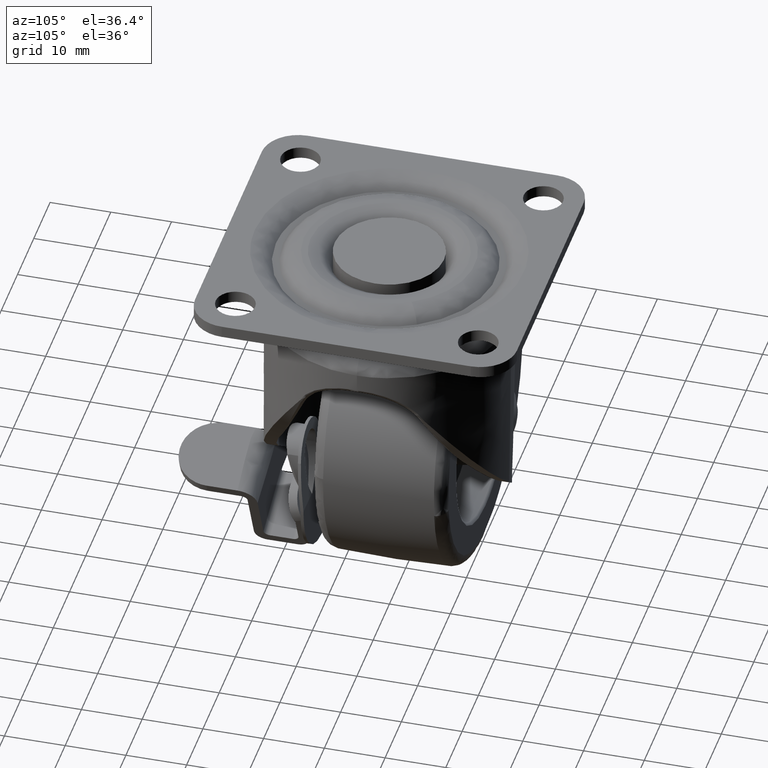
[diagram: clean part render]
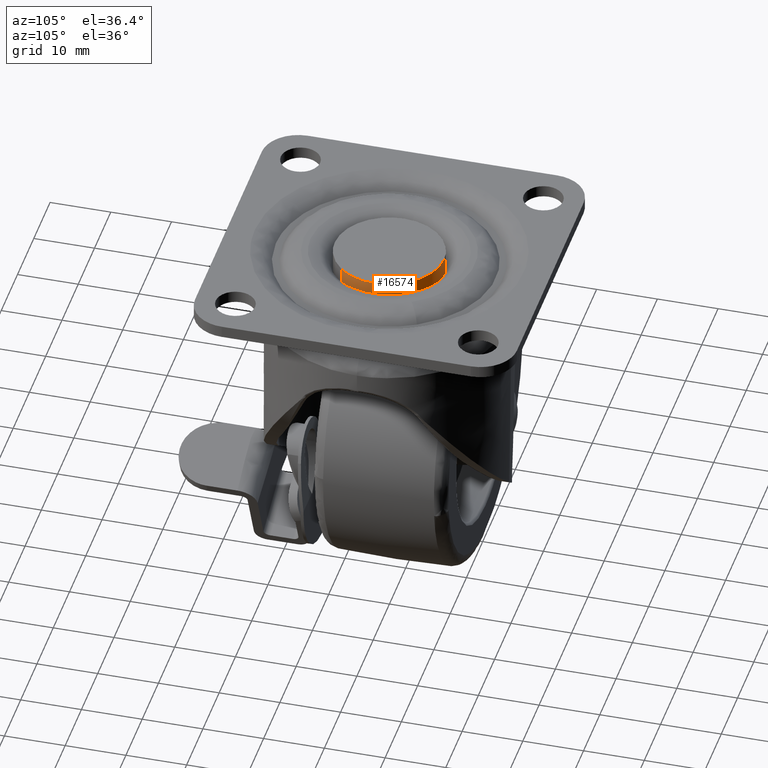
[diagram: same view with one face highlighted and labeled with its STEP entity id]
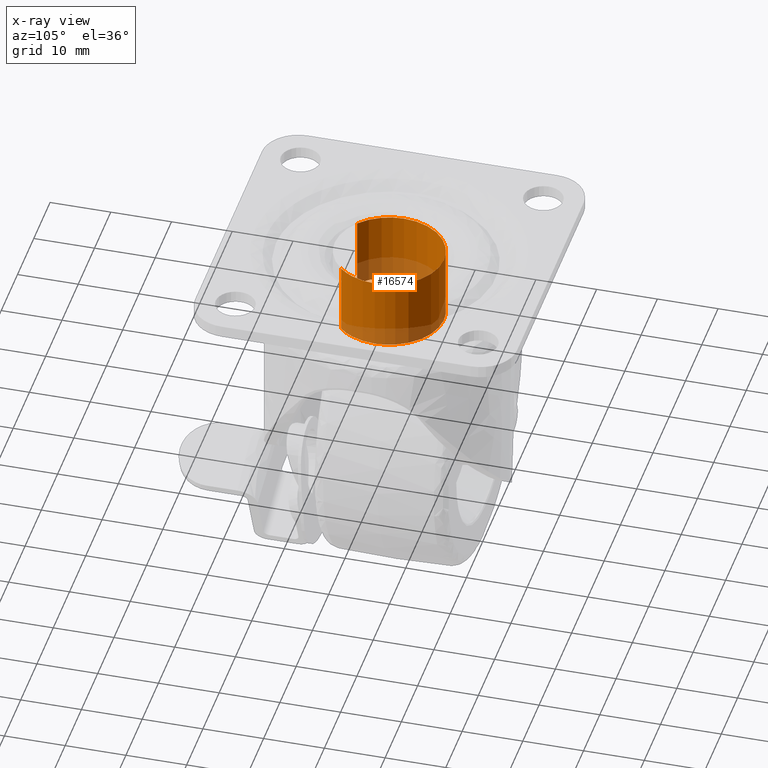
[diagram: x-ray of the same camera — body ghosted, the highlighted face saturated]
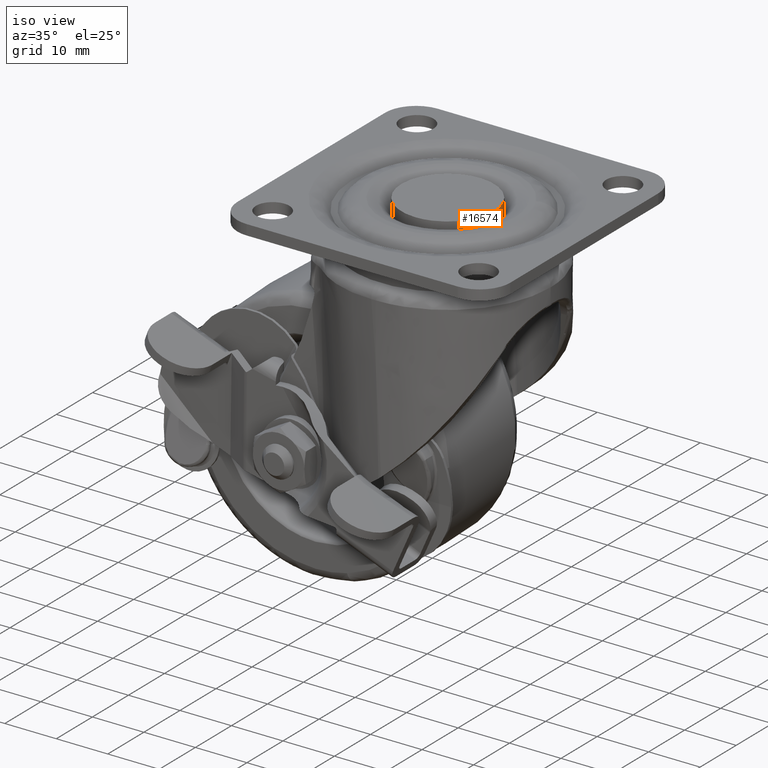
[diagram: same view with one face highlighted and labeled with its STEP entity id]
A machine part, auxiliary view. The second image highlights one B-rep face of the part: STEP entity #16574.
The next image is the same camera in x-ray: the body ghosted, the highlighted face saturated — about 25% of this face is hidden behind the body in this view.
A second angle (iso view) of the same face is appended — the face is thin or edge-on in the first view.
In plain terms, the highlighted face is a freeform B-spline surface patch.
Its self-contained STEP definition (entity closure, byte-faithful):
#16420=CARTESIAN_POINT('',(-5.811678345438228,-6.872000786464183,0.297496625000001));
#16421=CARTESIAN_POINT('',(-6.008352055535609,-6.705673049083633,0.297496625000001));
#16422=CARTESIAN_POINT('',(-6.195191181243784,-6.528369339110586,0.297496625000001));
#16423=CARTESIAN_POINT('',(-12.723560520354372,-0.333178157866802,0.297496625000001));
#16424=CARTESIAN_POINT('',(-6.528369339110586,6.195191181243784,0.297496625000001));
#16425=CARTESIAN_POINT('',(-0.333178157866802,12.723560520354372,0.297496625000001));
#16426=CARTESIAN_POINT('',(6.195191181243784,6.528369339110586,0.297496625000001));
#16427=CARTESIAN_POINT('',(12.723560520354372,0.333178157866802,0.297496625000001));
#16428=CARTESIAN_POINT('',(6.528369339110586,-6.195191181243784,0.297496625000001));
#16429=CARTESIAN_POINT('',(-5.811678345438228,-6.872000786464183,-12.204799040625025));
#16430=CARTESIAN_POINT('',(-6.008352055535609,-6.705673049083633,-12.204799040625021));
#16431=CARTESIAN_POINT('',(-6.195191181243784,-6.528369339110586,-12.204799040625019));
#16432=CARTESIAN_POINT('',(-12.723560520354372,-0.333178157866802,-12.204799040625021));
#16433=CARTESIAN_POINT('',(-6.528369339110586,6.195191181243784,-12.204799040625019));
#16434=CARTESIAN_POINT('',(-0.333178157866802,12.723560520354372,-12.204799040625021));
#16435=CARTESIAN_POINT('',(6.195191181243784,6.528369339110586,-12.204799040625019));
#16436=CARTESIAN_POINT('',(12.723560520354372,0.333178157866802,-12.204799040625021));
#16437=CARTESIAN_POINT('',(6.528369339110586,-6.195191181243784,-12.204799040625019));
#16445=(BOUNDED_SURFACE()B_SPLINE_SURFACE(2,1,((#16420,#16429),(#16421,#16430),(#16422,#16431),(#16423,#16432),(#16424,#16433),(#16425,#16434),(#16426,#16435),(#16427,#16436),(#16428,#16437)),.UNSPECIFIED.,.F.,.F.,.U.)B_SPLINE_SURFACE_WITH_KNOTS((3,2,2,2,3),(2,2),(0.0,0.596467529817257,15.508155775248680,30.419844020680092,45.331532266111502),(0.0,12.502295665625031),.UNSPECIFIED.)GEOMETRIC_REPRESENTATION_ITEM()RATIONAL_B_SPLINE_SURFACE(((0.977505800795127,0.977505800795127),(0.988284271247462,0.988284271247462),(1.0,1.0),(0.707106781186548,0.707106781186548),(1.0,1.0),(0.707106781186548,0.707106781186548),(1.0,1.0),(0.707106781186548,0.707106781186548),(1.0,1.0)))REPRESENTATION_ITEM('')SURFACE());
#16446=CARTESIAN_POINT('',(-5.811678486570379,-6.872001116954404,-11.899865000002620));
#16447=VERTEX_POINT('',#16446);
#16448=CARTESIAN_POINT('',(-9.0,0.0,-11.899865000000020));
#16449=VERTEX_POINT('',#16448);
#16450=CARTESIAN_POINT('',(-5.811678486570379,-6.872001116954404,-11.899865000002620));
#16451=CARTESIAN_POINT('',(-6.247069804922973,-6.503882552466793,-11.899865000002499));
#16452=CARTESIAN_POINT('',(-7.018888042895362,-5.713740328352339,-11.899865000002160));
#16453=CARTESIAN_POINT('',(-7.906705587162823,-4.389310077951777,-11.899865000001720));
#16454=CARTESIAN_POINT('',(-8.557692687394930,-2.934772598688211,-11.899865000001080));
#16455=CARTESIAN_POINT('',(-8.923881612996048,-1.466110313424584,-11.899865000000631));
#16456=CARTESIAN_POINT('',(-9.000014354109085,-0.447970466527409,-11.899865000000160));
#16457=CARTESIAN_POINT('',(-9.0,0.0,-11.899865000000020));
#16458=B_SPLINE_CURVE_WITH_KNOTS('',3,(#16450,#16451,#16452,#16453,#16454,#16455,#16456,#16457),.UNSPECIFIED.,.F.,.U.,(4,1,1,1,1,4),(0.000000035396710,1.710463458967251,3.298772666171680,4.764865570750185,6.475345099769010,7.819274894724820),.UNSPECIFIED.);
#16459=EDGE_CURVE('',#16447,#16449,#16458,.T.);
#16460=ORIENTED_EDGE('',*,*,#16459,.F.);
#16461=CARTESIAN_POINT('',(-5.811678487576729,-6.872001116103331,-2.839428E-016));
#16462=VERTEX_POINT('',#16461);
#16463=CARTESIAN_POINT('',(-5.811678487576729,-6.872001116103331,-2.839428E-016));
#16464=CARTESIAN_POINT('',(-5.811678486570379,-6.872001116954404,-11.899865000002620));
#16465=QUASI_UNIFORM_CURVE('',1,(#16463,#16464),.UNSPECIFIED.,.F.,.U.);
#16466=EDGE_CURVE('',#16462,#16447,#16465,.T.);
#16467=ORIENTED_EDGE('',*,*,#16466,.F.);
#16468=CARTESIAN_POINT('',(-9.0,0.0,0.0));
#16469=VERTEX_POINT('',#16468);
#16470=CARTESIAN_POINT('',(-5.811678487576729,-6.872001116103331,-2.839428E-016));
#16471=CARTESIAN_POINT('',(-6.309295077022649,-6.451316655763561,-2.665606E-016));
#16472=CARTESIAN_POINT('',(-7.184227326029249,-5.530868186337985,-2.285288E-016));
#16473=CARTESIAN_POINT('',(-8.104014890124521,-4.030030174358677,-1.665160E-016));
#16474=CARTESIAN_POINT('',(-8.806879228236774,-2.198962705697201,-9.085849E-017));
#16475=CARTESIAN_POINT('',(-9.000374695630573,-0.855282018685009,-3.533922E-017));
#16476=CARTESIAN_POINT('',(-9.0,0.0,0.0));
#16477=B_SPLINE_CURVE_WITH_KNOTS('',3,(#16470,#16471,#16472,#16473,#16474,#16475,#16476),.UNSPECIFIED.,.F.,.U.,(4,1,1,1,4),(0.000000035396177,1.954818951832569,3.787476283195245,5.253567264208143,7.819274893406824),.UNSPECIFIED.);
#16478=EDGE_CURVE('',#16462,#16469,#16477,.T.);
#16479=ORIENTED_EDGE('',*,*,#16478,.T.);
#16480=CARTESIAN_POINT('',(0.000001393269435,8.999999999999892,0.0));
#16481=VERTEX_POINT('',#16480);
#16482=CARTESIAN_POINT('',(-9.0,0.0,0.0));
#16483=CARTESIAN_POINT('',(-9.000177143122375,0.736324190114178,0.0));
#16484=CARTESIAN_POINT('',(-8.836431406391315,2.061600756191769,0.0));
#16485=CARTESIAN_POINT('',(-8.200809499818698,3.837978498409955,0.0));
#16486=CARTESIAN_POINT('',(-7.485904467636866,5.047422675240630,0.0));
#16487=CARTESIAN_POINT('',(-6.617652429115605,6.146022561801983,0.0));
#16488=CARTESIAN_POINT('',(-5.626368948113078,7.089844183151025,0.0));
#16489=CARTESIAN_POINT('',(-4.418366936548391,7.875659149136771,0.0));
#16490=CARTESIAN_POINT('',(-3.148095388172258,8.466959360347001,0.0));
#16491=CARTESIAN_POINT('',(-1.730306382095328,8.887569419742487,0.0));
#16492=CARTESIAN_POINT('',(-0.589047005816331,9.000064572125339,0.0));
#16493=CARTESIAN_POINT('',(0.000001393269435,8.999999999999892,0.0));
#16494=B_SPLINE_CURVE_WITH_KNOTS('',3,(#16482,#16483,#16484,#16485,#16486,#16487,#16488,#16489,#16490,#16491,#16492,#16493),.UNSPECIFIED.,.F.,.U.,(4,1,1,1,1,1,1,1,1,4),(0.000000133874657,2.208946385119656,3.976106313089417,5.632826551038304,6.405989941602541,8.173062478123811,9.719359725076593,10.713390844120980,12.370111797443739,14.137256431155780),.UNSPECIFIED.);
#16495=EDGE_CURVE('',#16469,#16481,#16494,.T.);
#16496=ORIENTED_EDGE('',*,*,#16495,.T.);
#16497=CARTESIAN_POINT('',(9.0,0.0,0.0));
#16498=VERTEX_POINT('',#16497);
#16499=CARTESIAN_POINT('',(0.000001393269435,8.999999999999892,0.0));
#16500=CARTESIAN_POINT('',(0.589051351970253,9.000057791965817,0.0));
#16501=CARTESIAN_POINT('',(1.803949045390531,8.880335598311490,0.0));
#16502=CARTESIAN_POINT('',(3.607126730952656,8.321340848177885,0.0));
#16503=CARTESIAN_POINT('',(5.121842507711938,7.463180421701542,0.0));
#16504=CARTESIAN_POINT('',(6.505974957766877,6.298586393523453,0.0));
#16505=CARTESIAN_POINT('',(7.532790925391183,5.031569235964429,0.0));
#16506=CARTESIAN_POINT('',(8.410562350468497,3.364958394329459,0.0));
#16507=CARTESIAN_POINT('',(8.895470122159376,1.730344071066978,0.0));
#16508=CARTESIAN_POINT('',(9.000016708085267,0.515401744074895,0.0));
#16509=CARTESIAN_POINT('',(9.0,0.0,0.0));
#16510=B_SPLINE_CURVE_WITH_KNOTS('',3,(#16499,#16500,#16501,#16502,#16503,#16504,#16505,#16506,#16507,#16508,#16509),.UNSPECIFIED.,.F.,.U.,(4,1,1,1,1,1,1,1,4),(0.000000134358734,1.767156144423035,3.644762790006901,5.632825926312913,6.958219385407749,9.056653441255062,10.492492699447141,12.591024739583130,14.137254860606550),.UNSPECIFIED.);
#16511=EDGE_CURVE('',#16481,#16498,#16510,.T.);
#16512=ORIENTED_EDGE('',*,*,#16511,.T.);
#16513=CARTESIAN_POINT('',(6.528369164085167,-6.195190860361158,-2.775558E-016));
#16514=VERTEX_POINT('',#16513);
#16515=CARTESIAN_POINT('',(9.0,0.0,0.0));
#16516=CARTESIAN_POINT('',(9.000525149121158,-0.925382229777730,-4.145880E-017));
#16517=CARTESIAN_POINT('',(8.772830079642695,-2.384141329846381,-1.068138E-016));
#16518=CARTESIAN_POINT('',(7.887828984923304,-4.492675686013218,-2.012800E-016));
#16519=CARTESIAN_POINT('',(7.092031497576330,-5.601612015903402,-2.509624E-016));
#16520=CARTESIAN_POINT('',(6.528369164085167,-6.195190860361158,-2.775558E-016));
#16521=B_SPLINE_CURVE_WITH_KNOTS('',3,(#16515,#16516,#16517,#16518,#16519,#16520),.UNSPECIFIED.,.F.,.U.,(4,1,1,4),(0.000000035760094,2.775923587437006,4.377380344111343,6.833003840658011),.UNSPECIFIED.);
#16522=EDGE_CURVE('',#16498,#16514,#16521,.T.);
#16523=ORIENTED_EDGE('',*,*,#16522,.T.);
#16524=CARTESIAN_POINT('',(6.528369165037635,-6.195190859357465,-11.899864999997840));
#16525=VERTEX_POINT('',#16524);
#16526=CARTESIAN_POINT('',(6.528369164085167,-6.195190860361158,-2.775558E-016));
#16527=CARTESIAN_POINT('',(6.528369165037635,-6.195190859357465,-11.899864999997840));
#16528=QUASI_UNIFORM_CURVE('',1,(#16526,#16527),.UNSPECIFIED.,.F.,.U.);
#16529=EDGE_CURVE('',#16514,#16525,#16528,.T.);
#16530=ORIENTED_EDGE('',*,*,#16529,.T.);
#16531=CARTESIAN_POINT('',(9.0,0.0,-11.899865000000020));
#16532=VERTEX_POINT('',#16531);
#16533=CARTESIAN_POINT('',(9.0,0.0,-11.899865000000020));
#16534=CARTESIAN_POINT('',(9.000490324470940,-0.925361048646768,-11.899864999999711));
#16535=CARTESIAN_POINT('',(8.750749627155578,-2.526535267039829,-11.899864999999110));
#16536=CARTESIAN_POINT('',(7.813653688850240,-4.618401380077932,-11.899864999998440));
#16537=CARTESIAN_POINT('',(6.993898062107184,-5.704771721910468,-11.899864999997970));
#16538=CARTESIAN_POINT('',(6.528369165037635,-6.195190859357465,-11.899864999997840));
#16539=B_SPLINE_CURVE_WITH_KNOTS('',3,(#16533,#16534,#16535,#16536,#16537,#16538),.UNSPECIFIED.,.F.,.U.,(4,1,1,4),(0.000000035759028,2.775923586874220,4.804451056537237,6.833003839274299),.UNSPECIFIED.);
#16540=EDGE_CURVE('',#16532,#16525,#16539,.T.);
#16541=ORIENTED_EDGE('',*,*,#16540,.F.);
#16542=CARTESIAN_POINT('',(0.000001393269435,8.999999999999892,-11.899865000000020));
#16543=VERTEX_POINT('',#16542);
#16544=CARTESIAN_POINT('',(0.000001393269435,8.999999999999892,-11.899865000000020));
#16545=CARTESIAN_POINT('',(0.589051258175912,9.000052539140153,-11.899865000000030));
#16546=CARTESIAN_POINT('',(1.840768240181466,8.876737259891376,-11.899865000000020));
#16547=CARTESIAN_POINT('',(3.641655689393759,8.306279654926737,-11.899865000000011));
#16548=CARTESIAN_POINT('',(5.374777565042295,7.310367631888845,-11.899865000000039));
#16549=CARTESIAN_POINT('',(6.685705141704540,6.107508577302936,-11.899864999999970));
#16550=CARTESIAN_POINT('',(7.653188974068240,4.802774601335121,-11.899865000000119));
#16551=CARTESIAN_POINT('',(8.272744589240967,3.626355502039723,-11.899864999999760));
#16552=CARTESIAN_POINT('',(8.834865058377648,2.024724273820064,-11.899865000000201));
#16553=CARTESIAN_POINT('',(9.000258630601621,0.809968487854300,-11.899864999999970));
#16554=CARTESIAN_POINT('',(9.0,0.0,-11.899865000000020));
#16555=B_SPLINE_CURVE_WITH_KNOTS('',3,(#16544,#16545,#16546,#16547,#16548,#16549,#16550,#16551,#16552,#16553,#16554),.UNSPECIFIED.,.F.,.U.,(4,1,1,1,1,1,1,1,4),(0.000000134358734,1.767156144423035,3.755212498726911,5.632825926312913,7.731265048735684,9.056653441255062,10.492492699447141,11.707432905375491,14.137254860606550),.UNSPECIFIED.);
#16556=EDGE_CURVE('',#16543,#16532,#16555,.T.);
#16557=ORIENTED_EDGE('',*,*,#16556,.F.);
#16558=CARTESIAN_POINT('',(-9.0,0.0,-11.899865000000020));
#16559=CARTESIAN_POINT('',(-9.000031885864276,0.589042286392924,-11.899865000000011));
#16560=CARTESIAN_POINT('',(-8.869573078848640,1.914432189604586,-11.899865000000061));
#16561=CARTESIAN_POINT('',(-8.276166057122625,3.710700608019968,-11.899864999999959));
#16562=CARTESIAN_POINT('',(-7.391822749962556,5.206555757274257,-11.899865000000091));
#16563=CARTESIAN_POINT('',(-6.441120501472191,6.336385683259429,-11.899864999999890));
#16564=CARTESIAN_POINT('',(-5.161624084217332,7.454110919139605,-11.899865000000100));
#16565=CARTESIAN_POINT('',(-3.573542373042096,8.340957538016111,-11.899865000000000));
#16566=CARTESIAN_POINT('',(-1.730287861092151,8.887537998650512,-11.899865000000020));
#16567=CARTESIAN_POINT('',(-0.589047288462884,9.000064991156744,-11.899865000000030));
#16568=CARTESIAN_POINT('',(0.000001393269435,8.999999999999892,-11.899865000000020));
#16569=B_SPLINE_CURVE_WITH_KNOTS('',3,(#16558,#16559,#16560,#16561,#16562,#16563,#16564,#16565,#16566,#16567,#16568),.UNSPECIFIED.,.F.,.U.,(4,1,1,1,1,1,1,1,4),(0.000000133874657,1.767156340535719,3.976106313089417,5.632826551038304,6.958220156979398,8.393980478737110,10.713390844120980,12.370111797443739,14.137256431155780),.UNSPECIFIED.);
#16570=EDGE_CURVE('',#16449,#16543,#16569,.T.);
#16571=ORIENTED_EDGE('',*,*,#16570,.F.);
#16572=EDGE_LOOP('',(#16460,#16467,#16479,#16496,#16512,#16523,#16530,#16541,#16557,#16571));
#16573=FACE_OUTER_BOUND('',#16572,.T.);
#16574=ADVANCED_FACE('',(#16573),#16445,.T.);